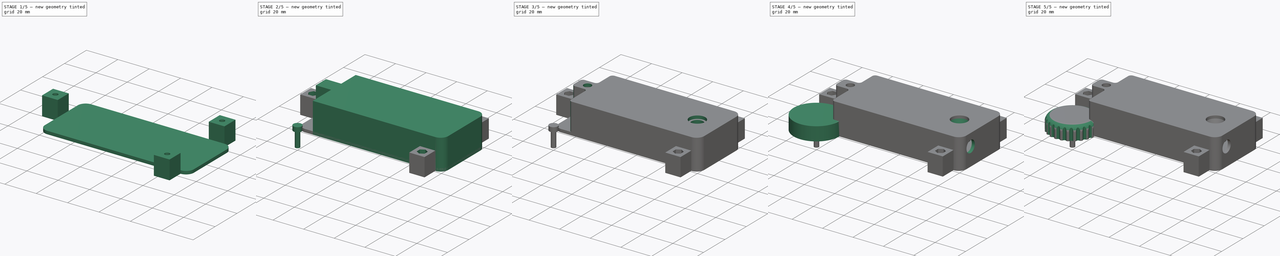
[diagram: build sequence overview — one tinted view per stage of 5, left to right]
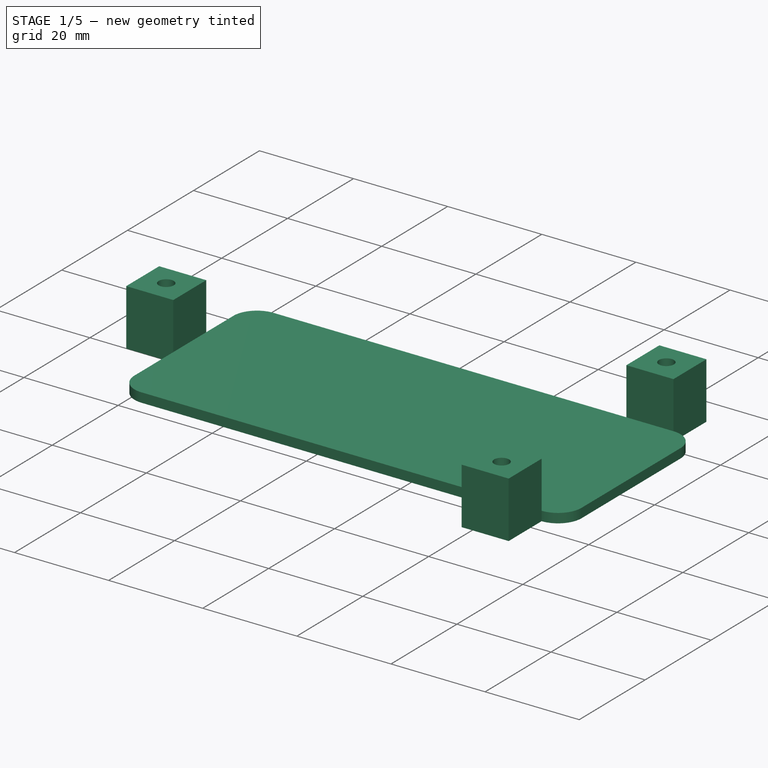
[diagram: stage 1 of 5 — iso view after this stage's code; geometry added in this stage tinted green]
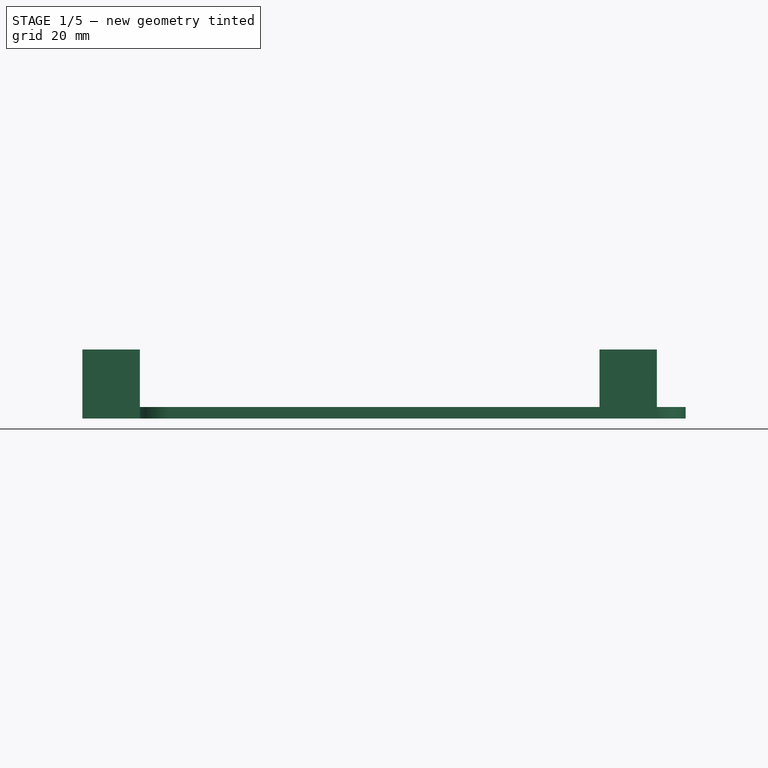
[diagram: stage 1 of 5 — front view after this stage's code; geometry added in this stage tinted green]
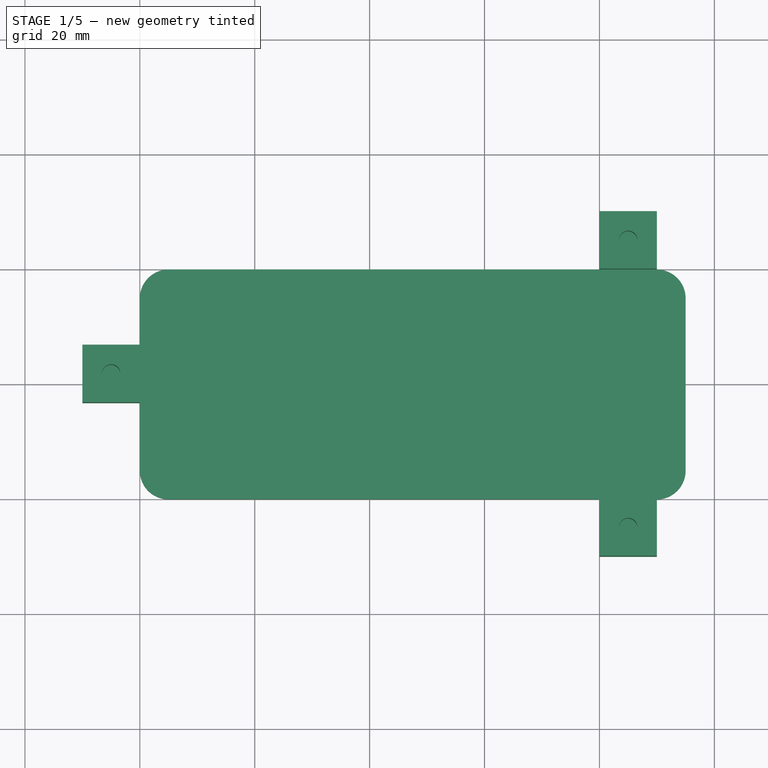
[diagram: stage 1 of 5 — top view after this stage's code; geometry added in this stage tinted green]
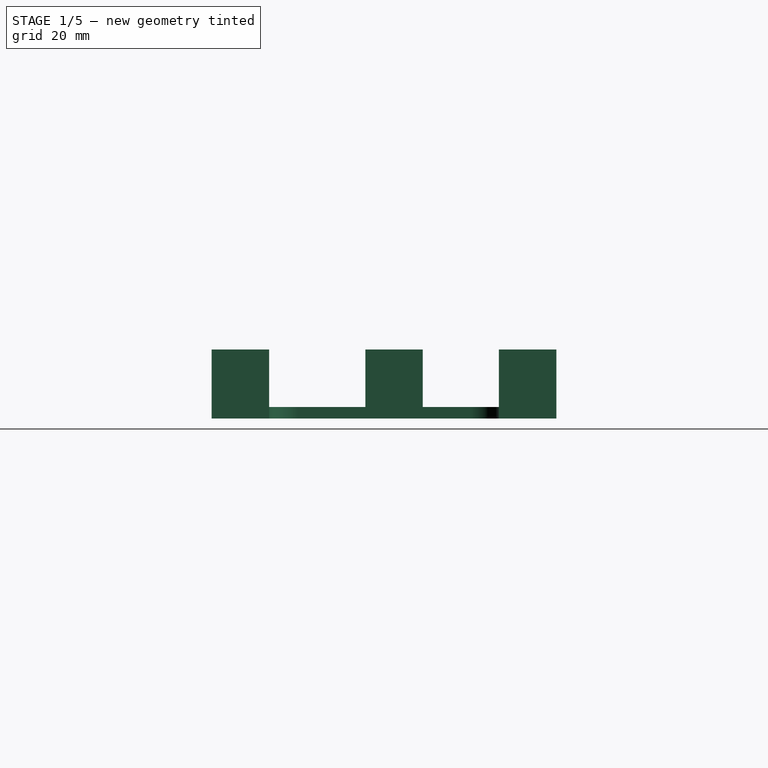
[diagram: stage 1 of 5 — right view after this stage's code; geometry added in this stage tinted green]
FCSTD DOCUMENT  (FreeCAD 0.17R12372 (Git))
Label: housing
License: All rights reserved
LicenseURL: http://en.wikipedia.org/wiki/All_rights_reserved
objects: Sketcher::SketchObject×17, PartDesign::Pocket×8, PartDesign::Pad×6, PartDesign::Fillet×4, PartDesign::Body×4, PartDesign::Plane×2, Part::Feature×2, App::VRMLObject×1, PartDesign::PolarPattern×1, PartDesign::Thickness×1, PartDesign::Line×1, PartDesign::Groove×1, PartDesign::Revolution×1
note: 64 computed .brp shape members not serialized (recipe doc carries the construction recipe); baked Part::Feature solids carry a one-line shape summary decoded from their .brp

FEATURE [Sketcher::SketchObject] Sketch
  MapMode = 5
  Support = -> [XY_Plane]
  sketch-geometry (8):
    g0: LineSegment StartX=5 StartY=0 StartZ=0 EndX=90 EndY=0 EndZ=0
    g1: LineSegment StartX=95 StartY=5 StartZ=0 EndX=95 EndY=35 EndZ=0
    g2: LineSegment StartX=90 StartY=40 StartZ=0 EndX=5 EndY=40 EndZ=0
    g3: LineSegment StartX=0 StartY=35 StartZ=0 EndX=0 EndY=5 EndZ=0
    g4: ArcOfCircle CenterX=5 CenterY=35 CenterZ=0 NormalX=0 NormalY=0 NormalZ=1 AngleXU=0 Radius=5 StartAngle=1.5708 EndAngle=3.14159
    g5: ArcOfCircle CenterX=90 CenterY=35 CenterZ=0 NormalX=0 NormalY=0 NormalZ=1 AngleXU=0 Radius=5 StartAngle=0 EndAngle=1.5708
    g6: ArcOfCircle CenterX=90 CenterY=5 CenterZ=0 NormalX=0 NormalY=0 NormalZ=1 AngleXU=0 Radius=5 StartAngle=4.71239 EndAngle=6.28319
    g7: ArcOfCircle CenterX=5 CenterY=5 CenterZ=0 NormalX=0 NormalY=0 NormalZ=1 AngleXU=0 Radius=5 StartAngle=3.14159 EndAngle=4.71239
  constraints (20):
    c: Horizontal(g0)
    c: Horizontal(g2)
    c: Vertical(g1)
    c: Vertical(g3)
    c: Tangent(g3,g4) = -1.5708
    c: Tangent(g2,g4) = -1.5708
    c: Tangent(g2,g5) = -1.5708
    c: Tangent(g1,g5) = -1.5708
    c: Tangent(g0,g6) = -1.5708
    c: Tangent(g1,g6) = -1.5708
    c: Tangent(g0,g7) = -1.5708
    c: Tangent(g3,g7) = -1.5708
    c: Equal(g4,g7)
    c: Equal(g7,g6)
    c: Equal(g6,g5)
    c: Radius(g4) = 5
    c: PointOnObject(g0,g-1)
    c: DistanceY(g0,g2) = 40
    c: DistanceX(g3,g1) = 95
    c: PointOnObject(g3,g-2)
FEATURE [PartDesign::Pad] Pad
  Length = 2
  Length2 = 100
  Profile = -> Sketch
  Type = 0
FEATURE [PartDesign::Body] Body001  label="cover"
  Group = -> [Sketch002,Pad001,Sketch003,Pocket,Thickness,Sketch010,Pocket004,Fillet001,Sketch011,Pocket005,Sketch013,Pad005,Sketch015,Pocket007,DatumLine,DatumPlane001,Sketch016,Groove,Fillet003,Fillet004]
  Origin = -> Body001Origin
  Placement = pos=(0,0,2) rot=(0,0,1;0rad)
  Tip = -> Fillet004
FEATURE [Sketcher::SketchObject] Sketch017
  ExternalGeometry = -> [Pad]
  MapMode = 5
  Placement = pos=(0,0,2) rot=(0,0,1;0rad)
  Support = -> [Pad]
  sketch-geometry (12):
    g0: LineSegment StartX=0 StartY=26.75 StartZ=0 EndX=-10 EndY=26.75 EndZ=0
    g1: LineSegment StartX=-10 StartY=26.75 StartZ=0 EndX=-10 EndY=16.75 EndZ=0
    g2: LineSegment StartX=-10 StartY=16.75 StartZ=0 EndX=0 EndY=16.75 EndZ=0
    g3: LineSegment StartX=0 StartY=16.75 StartZ=0 EndX=0 EndY=26.75 EndZ=0
    g4: LineSegment StartX=90 StartY=0 StartZ=0 EndX=80 EndY=0 EndZ=0
    g5: LineSegment StartX=80 StartY=0 StartZ=0 EndX=80 EndY=-10 EndZ=0
    g6: LineSegment StartX=80 StartY=-10 StartZ=0 EndX=90 EndY=-10 EndZ=0
    g7: LineSegment StartX=90 StartY=-10 StartZ=0 EndX=90 EndY=0 EndZ=0
    g8: LineSegment StartX=90 StartY=40 StartZ=0 EndX=80 EndY=40 EndZ=0
    g9: LineSegment StartX=80 StartY=40 StartZ=0 EndX=80 EndY=50 EndZ=0
    g10: LineSegment StartX=80 StartY=50 StartZ=0 EndX=90 EndY=50 EndZ=0
    g11: LineSegment StartX=90 StartY=50 StartZ=0 EndX=90 EndY=40 EndZ=0
  constraints (34):
    c: Coincident(g0,g1)
    c: Coincident(g1,g2)
    c: Coincident(g2,g3)
    c: Coincident(g3,g0)
    c: Horizontal(g0)
    c: Horizontal(g2)
    c: Vertical(g1)
    c: Vertical(g3)
    c: PointOnObject(g0,g-2)
    c: DistanceY(g0,g-3) = 13.25
    c: DistanceX(g0,g0) = 10
    c: DistanceY(g1,g1) = 10
    c: Coincident(g4,g5)
    c: Coincident(g5,g6)
    c: Coincident(g6,g7)
    c: Coincident(g7,g4)
    c: Horizontal(g4)
    c: Horizontal(g6)
    c: Vertical(g5)
    c: Vertical(g7)
    c: Coincident(g4,g-4)
    c: Coincident(g8,g9)
    c: Coincident(g9,g10)
    c: Coincident(g10,g11)
    c: Coincident(g11,g8)
    c: Horizontal(g8)
    c: Horizontal(g10)
    c: Vertical(g9)
    c: Vertical(g11)
    c: Coincident(g8,g-3)
    c: Equal(g11,g0)
    c: Equal(g0,g7)
    c: Equal(g7,g6)
    c: Equal(g10,g11)
FEATURE [PartDesign::Pad] Pad006
  BaseFeature = -> Pad
  Length = 2
  Length2 = 100
  Profile = -> Sketch017
  Reversed = true
  Type = 0
FEATURE [Sketcher::SketchObject] Sketch018
  ExternalGeometry = -> [Pad006]
  MapMode = 5
  Placement = pos=(0,0,2) rot=(0,0,1;0rad)
  Support = -> [Pad006]
  sketch-geometry (12):
    g0: LineSegment StartX=-10 StartY=26.75 StartZ=0 EndX=0 EndY=26.75 EndZ=0
    g1: LineSegment StartX=0 StartY=26.75 StartZ=0 EndX=0 EndY=16.75 EndZ=0
    g2: LineSegment StartX=0 StartY=16.75 StartZ=0 EndX=-10 EndY=16.75 EndZ=0
    g3: LineSegment StartX=-10 StartY=16.75 StartZ=0 EndX=-10 EndY=26.75 EndZ=0
    g4: LineSegment StartX=80 StartY=0 StartZ=0 EndX=90 EndY=0 EndZ=0
    g5: LineSegment StartX=90 StartY=0 StartZ=0 EndX=90 EndY=-10 EndZ=0
    g6: LineSegment StartX=90 StartY=-10 StartZ=0 EndX=80 EndY=-10 EndZ=0
    g7: LineSegment StartX=80 StartY=-10 StartZ=0 EndX=80 EndY=0 EndZ=0
    g8: LineSegment StartX=90 StartY=50 StartZ=0 EndX=80 EndY=50 EndZ=0
    g9: LineSegment StartX=80 StartY=50 StartZ=0 EndX=80 EndY=40 EndZ=0
    g10: LineSegment StartX=80 StartY=40 StartZ=0 EndX=90 EndY=40 EndZ=0
    g11: LineSegment StartX=90 StartY=40 StartZ=0 EndX=90 EndY=50 EndZ=0
  constraints (30):
    c: Coincident(g0,g1)
    c: Coincident(g1,g2)
    c: Coincident(g2,g3)
    c: Coincident(g3,g0)
    c: Horizontal(g0)
    c: Horizontal(g2)
    c: Vertical(g1)
    c: Vertical(g3)
    c: Coincident(g0,g-4)
    c: Coincident(g1,g-5)
    c: Coincident(g4,g5)
    c: Coincident(g5,g6)
    c: Coincident(g6,g7)
    c: Coincident(g7,g4)
    c: Horizontal(g4)
    c: Horizontal(g6)
    c: Vertical(g5)
    c: Vertical(g7)
    c: Coincident(g4,g-6)
    c: Coincident(g5,g-8)
    c: Coincident(g8,g9)
    c: Coincident(g9,g10)
    c: Coincident(g10,g11)
    c: Coincident(g11,g8)
    c: Horizontal(g8)
    c: Horizontal(g10)
    c: Vertical(g9)
    c: Vertical(g11)
    c: Coincident(g8,g-11)
    c: Coincident(g9,g-9)
FEATURE [PartDesign::Pad] Pad007
  BaseFeature = -> Pad006
  Length = 10
  Length2 = 100
  Profile = -> Sketch018
  Type = 0
FEATURE [PartDesign::Body] Body003  label="M3x10"
  Group = -> [Sketch019,Revolution]
  Origin = -> Origin
  Placement = pos=(85,-5,15) rot=(0,0,1;0rad)
  Tip = -> Revolution
FEATURE [Sketcher::SketchObject] Sketch020
  ExternalGeometry = -> [Pad007]
  MapMode = 5
  Placement = pos=(0,0,12) rot=(0,0,1;0rad)
  Support = -> [Pad007]
  sketch-geometry (3):
    g0: Circle CenterX=85 CenterY=-5 CenterZ=0 NormalX=0 NormalY=0 NormalZ=1 AngleXU=0 Radius=1.6
    g1: Circle CenterX=85 CenterY=45 CenterZ=0 NormalX=0 NormalY=0 NormalZ=1 AngleXU=0 Radius=1.6
    g2: Circle CenterX=-5 CenterY=21.75 CenterZ=0 NormalX=0 NormalY=0 NormalZ=1 AngleXU=0 Radius=1.6
  constraints (9):
    c: Equal(g2,g1)
    c: Equal(g1,g0)
    c: Radius(g2) = 1.6
    c: DistanceY(g2,g-4) = 5
    c: DistanceX(g-4,g2) = 5
    c: DistanceY(g1,g-6) = 5
    c: DistanceX(g1,g-6) = 5
    c: DistanceX(g0,g-8) = 5
    c: DistanceY(g-8,g0) = 5
FEATURE [PartDesign::Pocket] Pocket008
  BaseFeature = -> Pad007
  Length = 9
  Profile = -> Sketch020
  Type = 0
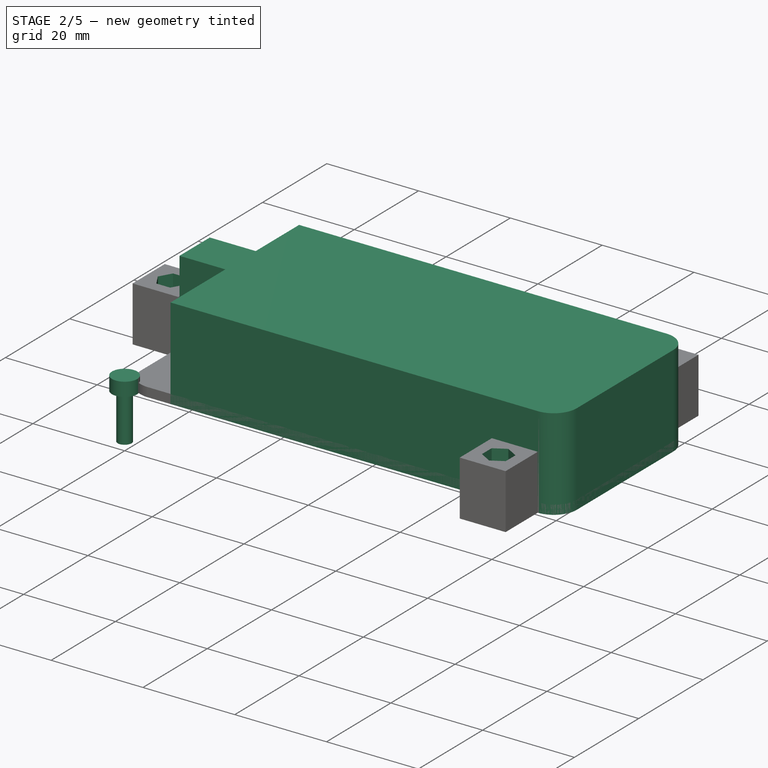
[diagram: stage 2 of 5 — iso view after this stage's code; geometry added in this stage tinted green]
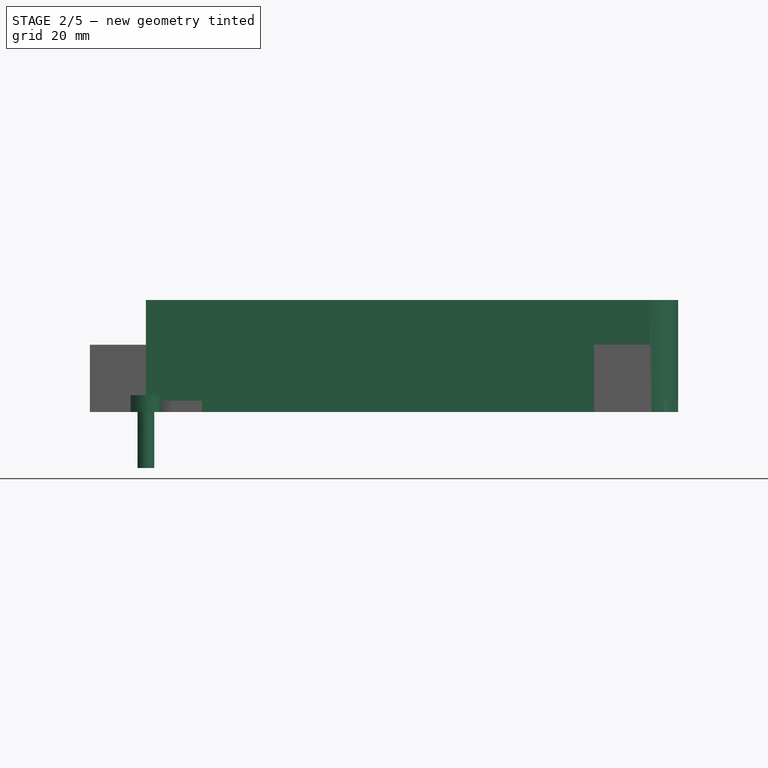
[diagram: stage 2 of 5 — front view after this stage's code; geometry added in this stage tinted green]
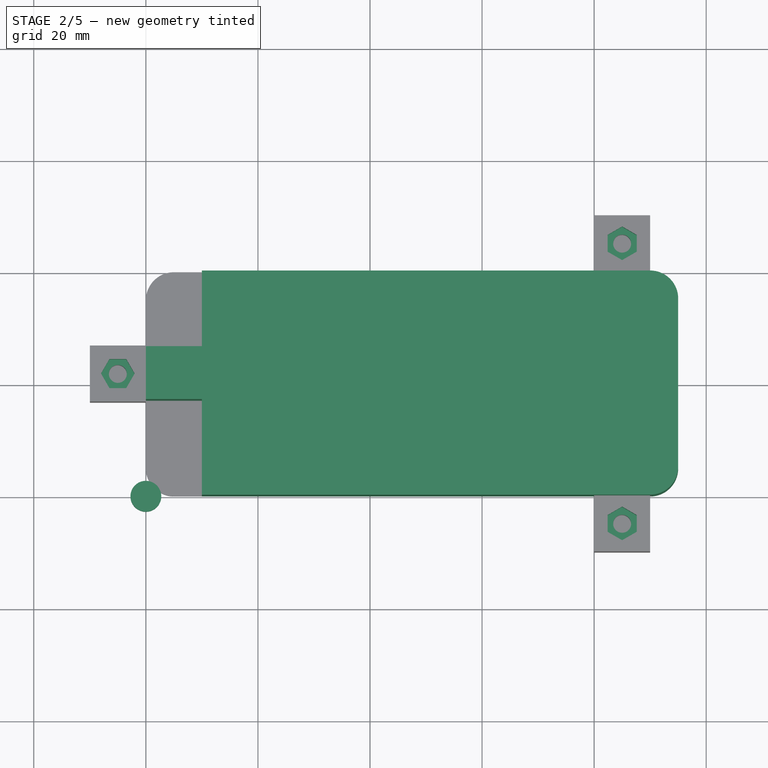
[diagram: stage 2 of 5 — top view after this stage's code; geometry added in this stage tinted green]
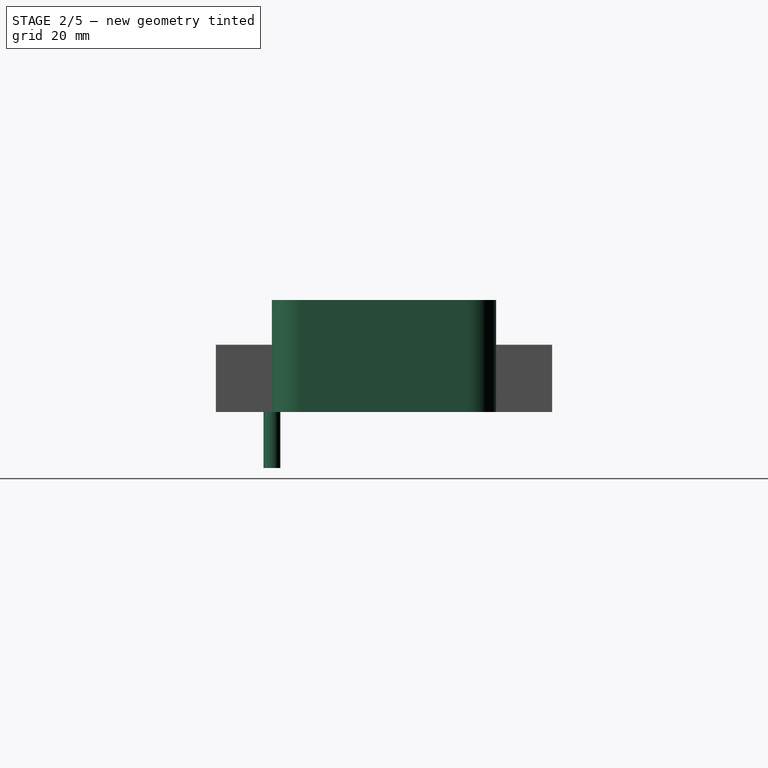
[diagram: stage 2 of 5 — right view after this stage's code; geometry added in this stage tinted green]
FEATURE [PartDesign::Plane] DatumPlane
  MapMode = 5
  Placement = pos=(5,0,2) rot=(0.57735,-0.57735,-0.57735;2.0944rad)
  Support = -> [Pad]
  superPlacement = pos=(0,2,-2) rot=(0,0,1;0rad)
FEATURE [Sketcher::SketchObject] Sketch001
  ExternalGeometry = -> [Pad]
  MapMode = 5
  Placement = pos=(5,0,2) rot=(0.57735,-0.57735,-0.57735;2.0944rad)
  Support = -> [DatumPlane]
  sketch-geometry (7):
    g0: LineSegment StartX=-39 StartY=0 StartZ=0 EndX=-24.6087 EndY=0 EndZ=0
    g1: LineSegment StartX=-37 StartY=3 StartZ=0 EndX=-37 EndY=4 EndZ=0
    g2: LineSegment StartX=-37 StartY=4 StartZ=0 EndX=-39 EndY=4 EndZ=0
    g3: LineSegment StartX=-39 StartY=4 StartZ=0 EndX=-39 EndY=0 EndZ=0
    g4: LineSegment StartX=-37 StartY=3 StartZ=0 EndX=-38 EndY=3 EndZ=0
    g5: LineSegment StartX=-38 StartY=3 StartZ=0 EndX=-38 EndY=0 EndZ=0
    g6: LineSegment StartX=-39 StartY=0 StartZ=0 EndX=-38 EndY=0 EndZ=0
  constraints (17):
    c: Coincident(g1,g2)
    c: Coincident(g2,g3)
    c: Coincident(g3,g0)
    c: Horizontal(g0)
    c: Horizontal(g2)
    c: Vertical(g1)
    c: Vertical(g3)
    c: Horizontal(g4)
    c: Coincident(g5,g4)
    c: Vertical(g5)
    c: Coincident(g1,g4)
    c: Distance(g5,g0) = 1
    c: DistanceY(g5,g5) = 3
    c: DistanceY(g1,g1) = 1
    c: DistanceX(g4,g4) = 1
    c: Coincident(g6,g0)
    c: Coincident(g6,g5)
FEATURE [App::VRMLObject] motion_led_pcb
  Placement = pos=(-120,90,4) rot=(0,0,1;0rad)
FEATURE [Part::Feature] Compound001  label="encoder"
  Placement = pos=(97,20.5,13.2) rot=(0,0,1;0rad)
  shape: bbox 15.85 x 11.79 x 29.72 mm, 174 faces, 12 solids (baked)
FEATURE [Sketcher::SketchObject] Sketch002
  MapMode = 5
  Support = -> [XY_Plane001]
  sketch-geometry (8):
    g0: LineSegment StartX=5 StartY=0 StartZ=0 EndX=90 EndY=0 EndZ=0
    g1: LineSegment StartX=95 StartY=5 StartZ=0 EndX=95 EndY=35 EndZ=0
    g2: LineSegment StartX=90 StartY=40 StartZ=0 EndX=5 EndY=40 EndZ=0
    g3: LineSegment StartX=0 StartY=35 StartZ=0 EndX=0 EndY=5 EndZ=0
    g4: ArcOfCircle CenterX=5 CenterY=35 CenterZ=0 NormalX=0 NormalY=0 NormalZ=1 AngleXU=0 Radius=5 StartAngle=1.5708 EndAngle=3.14159
    g5: ArcOfCircle CenterX=5 CenterY=5 CenterZ=0 NormalX=0 NormalY=0 NormalZ=1 AngleXU=0 Radius=5 StartAngle=3.14159 EndAngle=4.71239
    g6: ArcOfCircle CenterX=90 CenterY=5 CenterZ=0 NormalX=0 NormalY=0 NormalZ=1 AngleXU=0 Radius=5 StartAngle=4.71239 EndAngle=6.28319
    g7: ArcOfCircle CenterX=90 CenterY=35 CenterZ=0 NormalX=0 NormalY=0 NormalZ=1 AngleXU=0 Radius=5 StartAngle=0 EndAngle=1.5708
  constraints (20):
    c: Horizontal(g0)
    c: Horizontal(g2)
    c: Vertical(g1)
    c: Vertical(g3)
    c: Tangent(g2,g4) = -1.5708
    c: Tangent(g3,g4) = -1.5708
    c: Tangent(g3,g5) = -1.5708
    c: Tangent(g0,g5) = -1.5708
    c: Tangent(g1,g6) = -1.5708
    c: Tangent(g0,g6) = -1.5708
    c: Tangent(g2,g7) = -1.5708
    c: Tangent(g1,g7) = -1.5708
    c: Equal(g7,g4)
    c: Equal(g4,g5)
    c: Equal(g5,g6)
    c: Radius(g7) = 5
    c: PointOnObject(g0,g-1)
    c: PointOnObject(g3,g-2)
    c: DistanceY(g0,g2) = 40
    c: DistanceX(g3,g1) = 95
FEATURE [PartDesign::Pad] Pad001
  Length = 20
  Length2 = 100
  Profile = -> Sketch002
  Type = 0
FEATURE [PartDesign::Body] Body002  label="dial"
  Group = -> [Sketch006,Pad003,Sketch007,Pocket002,Fillet,Sketch009,Pocket003,PolarPattern]
  Origin = -> Body002Origin
  Placement = pos=(80,20,23) rot=(0,0,1;0rad)
FEATURE [PartDesign::Pocket] Pocket
  Length = 28
  Profile = -> Sketch003
  Type = 0
FEATURE [PartDesign::Thickness] Thickness
  Base = -> Pocket [Face2]
  BaseFeature = -> Pocket
  Join = 1
  Mode = 0
  Reversed = true
  Value = 2
FEATURE [Sketcher::SketchObject] Sketch019
  MapMode = 5
  Placement = pos=(0,0,0) rot=(1,0,0;1.5708rad)
  Support = -> [XZ_Plane003]
  sketch-geometry (6):
    g0: LineSegment StartX=0 StartY=3 StartZ=0 EndX=0 EndY=-10 EndZ=0
    g1: LineSegment StartX=0 StartY=-10 StartZ=0 EndX=1.5 EndY=-10 EndZ=0
    g2: LineSegment StartX=1.5 StartY=-10 StartZ=0 EndX=1.5 EndY=0 EndZ=0
    g3: LineSegment StartX=0 StartY=3 StartZ=0 EndX=2.75 EndY=3 EndZ=0
    g4: LineSegment StartX=2.75 StartY=3 StartZ=0 EndX=2.75 EndY=0 EndZ=0
    g5: LineSegment StartX=2.75 StartY=0 StartZ=0 EndX=1.5 EndY=0 EndZ=0
  constraints (18):
    c: PointOnObject(g0,g-2)
    c: PointOnObject(g0,g-2)
    c: Coincident(g1,g0)
    c: Horizontal(g1)
    c: Vertical(g2)
    c: Coincident(g2,g1)
    c: Coincident(g3,g0)
    c: Horizontal(g3)
    c: Coincident(g4,g3)
    c: Vertical(g4)
    c: Coincident(g5,g4)
    c: Coincident(g5,g2)
    c: Horizontal(g5)
    c: Distance(g3) = 2.75
    c: Distance(g1) = 1.5
    c: Distance(g4) = 3
    c: Distance(g2) = 10
    c: PointOnObject(g2,g-1)
FEATURE [PartDesign::Revolution] Revolution
  Angle = 360
  Axis = (0,0,1)
  Base = (0,0,0)
  Placement = pos=(0,0,0) rot=(1,0,0;1.5708rad)
  Profile = -> Sketch019
  ReferenceAxis = -> Sketch019 [V_Axis]
  Reversed = true
FEATURE [Sketcher::SketchObject] Sketch021
  ExternalGeometry = -> [Pocket008]
  MapMode = 5
  Placement = pos=(0,0,12) rot=(0,0,1;0rad)
  Support = -> [Pocket008]
  sketch-geometry (21):
    g0: LineSegment StartX=-3.5 StartY=19.1519 StartZ=0 EndX=-2 EndY=21.75 EndZ=0
    g1: LineSegment StartX=-2 StartY=21.75 StartZ=0 EndX=-3.5 EndY=24.3481 EndZ=0
    g2: LineSegment StartX=-3.5 StartY=24.3481 StartZ=0 EndX=-6.5 EndY=24.3481 EndZ=0
    g3: LineSegment StartX=-6.5 StartY=24.3481 StartZ=0 EndX=-8 EndY=21.75 EndZ=0
    g4: LineSegment StartX=-8 StartY=21.75 StartZ=0 EndX=-6.5 EndY=19.1519 EndZ=0
    g5: LineSegment StartX=-6.5 StartY=19.1519 StartZ=0 EndX=-3.5 EndY=19.1519 EndZ=0
    g6: Circle [constr] CenterX=-5 CenterY=21.75 CenterZ=0 NormalX=0 NormalY=0 NormalZ=1 AngleXU=0 Radius=3
    g7: LineSegment StartX=87.5981 StartY=43.5 StartZ=0 EndX=87.5981 EndY=46.5 EndZ=0
    g8: LineSegment StartX=87.5981 StartY=46.5 StartZ=0 EndX=85 EndY=48 EndZ=0
    g9: LineSegment StartX=85 StartY=48 StartZ=0 EndX=82.4019 EndY=46.5 EndZ=0
    g10: LineSegment StartX=82.4019 StartY=46.5 StartZ=0 EndX=82.4019 EndY=43.5 EndZ=0
    g11: LineSegment StartX=82.4019 StartY=43.5 StartZ=0 EndX=85 EndY=42 EndZ=0
    g12: LineSegment StartX=85 StartY=42 StartZ=0 EndX=87.5981 EndY=43.5 EndZ=0
    g13: Circle [constr] CenterX=85 CenterY=45 CenterZ=0 NormalX=0 NormalY=0 NormalZ=1 AngleXU=0 Radius=3
    g14: LineSegment StartX=87.5981 StartY=-6.5 StartZ=0 EndX=87.5981 EndY=-3.5 EndZ=0
    g15: LineSegment StartX=87.5981 StartY=-3.5 StartZ=0 EndX=85 EndY=-2 EndZ=0
    g16: LineSegment StartX=85 StartY=-2 StartZ=0 EndX=82.4019 EndY=-3.5 EndZ=0
    g17: LineSegment StartX=82.4019 StartY=-3.5 StartZ=0 EndX=82.4019 EndY=-6.5 EndZ=0
    g18: LineSegment StartX=82.4019 StartY=-6.5 StartZ=0 EndX=85 EndY=-8 EndZ=0
    g19: LineSegment StartX=85 StartY=-8 StartZ=0 EndX=87.5981 EndY=-6.5 EndZ=0
    g20: Circle [constr] CenterX=85 CenterY=-5 CenterZ=0 NormalX=0 NormalY=0 NormalZ=1 AngleXU=0 Radius=3
  constraints (48):
    c: Coincident(g0,g1)
    c: Coincident(g1,g2)
    c: Coincident(g2,g3)
    c: Coincident(g3,g4)
    c: Coincident(g4,g5)
    c: Coincident(g5,g0)
    c: Equal(g0, g1-g5) x5
    c: PointOnObject(g0,g6)
    c: PointOnObject(g1,g6)
    c: PointOnObject(g2,g6)
    c: PointOnObject(g3,g6)
    c: PointOnObject(g4,g6)
    c: PointOnObject(g5,g6)
    c: Coincident(g6,g-3)
    c: Coincident(g7,g8)
    c: Coincident(g8,g9)
    c: Coincident(g9,g10)
    c: Coincident(g10,g11)
    c: Coincident(g11,g12)
    c: Coincident(g12,g7)
    c: Equal(g7, g8-g12) x5
    c: PointOnObject(g7,g13)
    c: PointOnObject(g8,g13)
    c: PointOnObject(g9,g13)
    c: PointOnObject(g10,g13)
    c: PointOnObject(g11,g13)
    c: PointOnObject(g12,g13)
    c: Coincident(g13,g-4)
    c: Coincident(g14,g15)
    c: Coincident(g15,g16)
    c: Coincident(g16,g17)
    c: Coincident(g17,g18)
    c: Coincident(g18,g19)
    c: Coincident(g19,g14)
    c: Equal(g14, g15-g19) x5
    c: PointOnObject(g14,g20)
    c: PointOnObject(g15,g20)
    c: PointOnObject(g16,g20)
    c: PointOnObject(g17,g20)
    c: PointOnObject(g18,g20)
    c: PointOnObject(g19,g20)
    c: Coincident(g20,g-5)
    c: Equal(g6,g13)
    c: Equal(g13,g20)
    c: Radius(g6) = 3
    c: Horizontal(g2)
    c: Vertical(g7)
    c: Vertical(g17)
FEATURE [PartDesign::Pocket] Pocket009
  BaseFeature = -> Pocket008
  Length = 4
  Profile = -> Sketch021
  Type = 0
FEATURE [PartDesign::Body] Body  label="base"
  Group = -> [Sketch,Pad,DatumPlane,Sketch001,Sketch017,Pad006,Sketch018,Pad007,Sketch020,Pocket008,Sketch021,Pocket009]
  Origin = -> BodyOrigin
  Tip = -> Pocket009
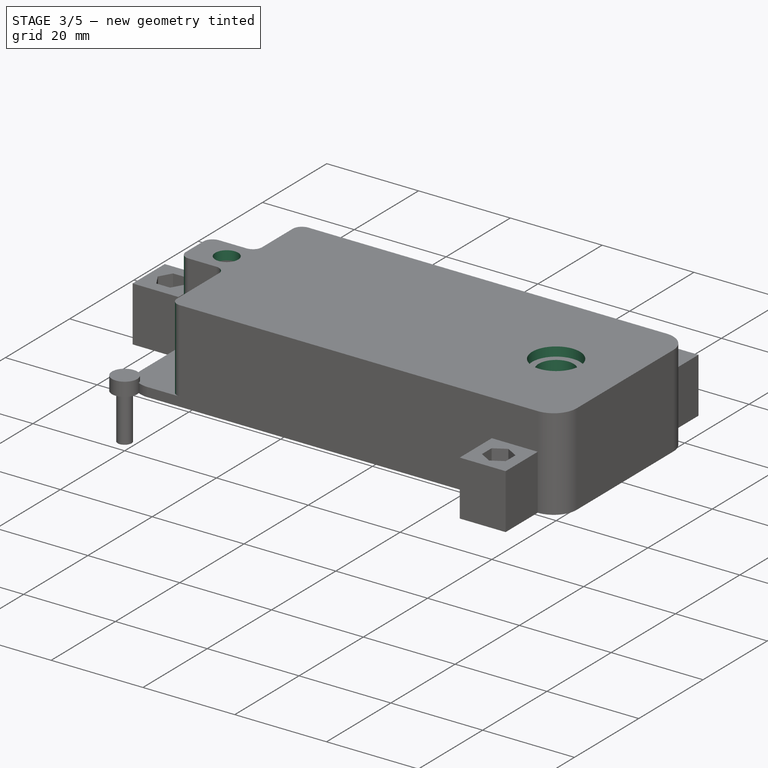
[diagram: stage 3 of 5 — iso view after this stage's code; geometry added in this stage tinted green]
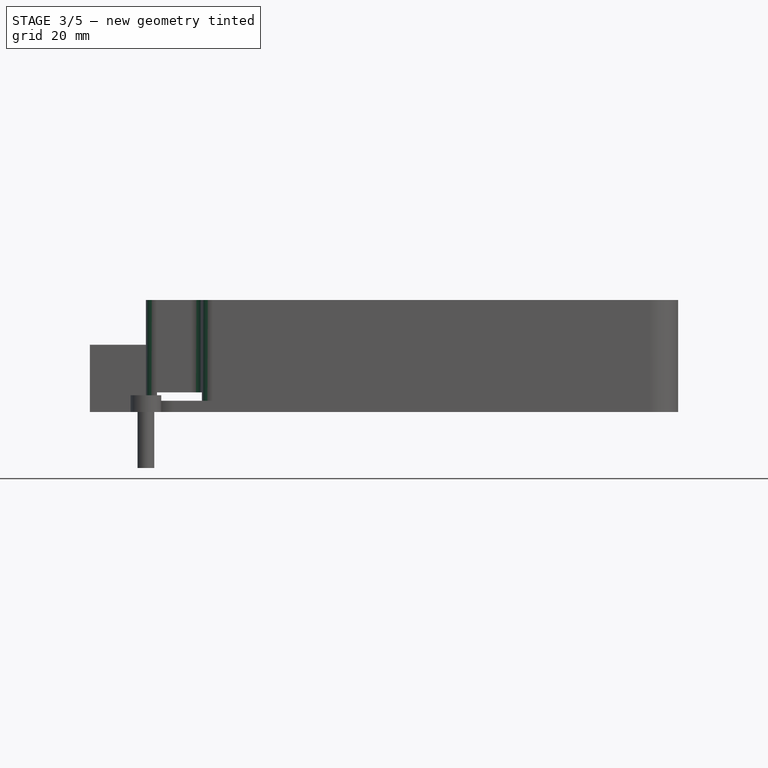
[diagram: stage 3 of 5 — front view after this stage's code; geometry added in this stage tinted green]
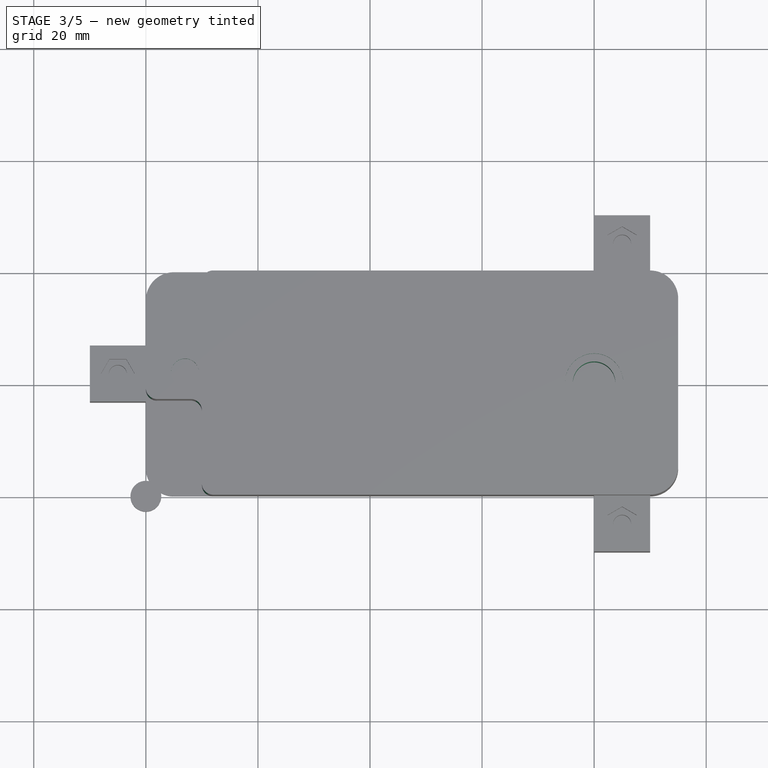
[diagram: stage 3 of 5 — top view after this stage's code; geometry added in this stage tinted green]
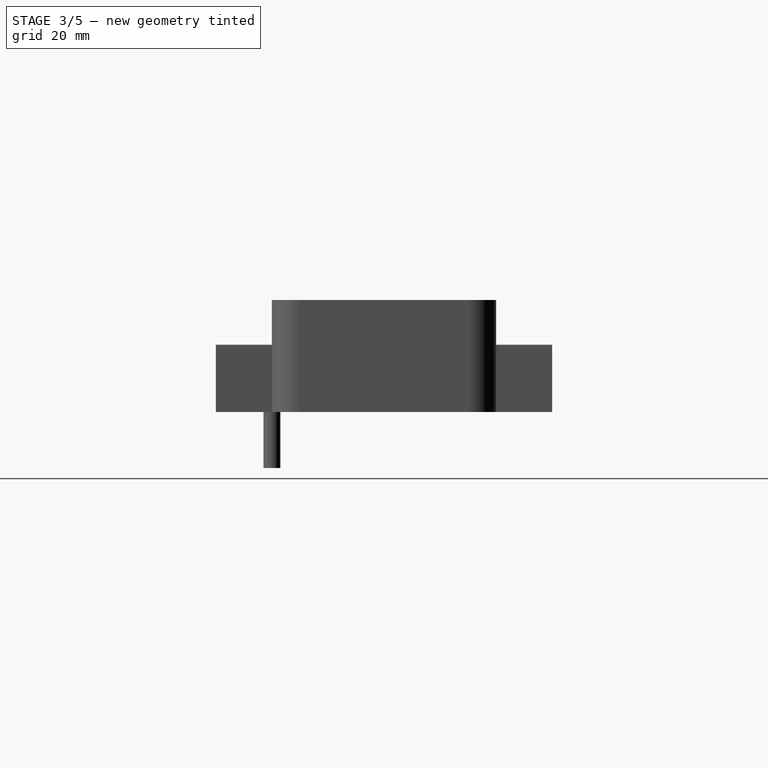
[diagram: stage 3 of 5 — right view after this stage's code; geometry added in this stage tinted green]
FEATURE [Sketcher::SketchObject] Sketch010
  ExternalGeometry = -> [Thickness]
  MapMode = 5
  Placement = pos=(0,2,0) rot=(0,0.707107,0.707107;3.14159rad)
  Support = -> [Thickness]
  sketch-geometry (4):
    g0: LineSegment StartX=-2 StartY=0 StartZ=0 EndX=-12 EndY=0 EndZ=0
    g1: LineSegment StartX=-12 StartY=0 StartZ=0 EndX=-12 EndY=3.5 EndZ=0
    g2: LineSegment StartX=-12 StartY=3.5 StartZ=0 EndX=-2 EndY=3.5 EndZ=0
    g3: LineSegment StartX=-2 StartY=3.5 StartZ=0 EndX=-2 EndY=0 EndZ=0
  constraints (11):
    c: Coincident(g0,g1)
    c: Coincident(g1,g2)
    c: Coincident(g2,g3)
    c: Coincident(g3,g0)
    c: Horizontal(g0)
    c: Horizontal(g2)
    c: Vertical(g1)
    c: Vertical(g3)
    c: Coincident(g0,g-4)
    c: Coincident(g0,g-5)
    c: DistanceY(g3,g3) = 3.5
FEATURE [PartDesign::Pocket] Pocket004
  BaseFeature = -> Thickness
  Length = 36
  Profile = -> Sketch010
  Reversed = true
  Type = 0
FEATURE [PartDesign::Fillet] Fillet001
  Base = -> Pocket004 [Edge4,Edge30,Edge55,Edge57,Edge49,Edge47]
  BaseFeature = -> Pocket004
  Radius = 2
FEATURE [Sketcher::SketchObject] Sketch011  label="hole_dial"
  ExternalGeometry = -> [Fillet001]
  MapMode = 5
  Placement = pos=(0,0,20) rot=(0,0,1;0rad)
  Support = -> [Fillet001]
  sketch-geometry (4):
    g0: Circle CenterX=7 CenterY=21.7781 CenterZ=0 NormalX=0 NormalY=0 NormalZ=1 AngleXU=0 Radius=2.5
    g1: LineSegment [constr] StartX=7 StartY=21.7781 StartZ=0 EndX=16.0028 EndY=21.7781 EndZ=0
    g2: Circle CenterX=80 CenterY=20 CenterZ=0 NormalX=0 NormalY=0 NormalZ=1 AngleXU=0 Radius=5.2
    g3: LineSegment [constr] StartX=80 StartY=20 StartZ=0 EndX=91.4136 EndY=20 EndZ=0
  constraints (10):
    c: Radius(g0) = 2.5
    c: Coincident(g1,g0)
    c: Horizontal(g1)
    c: Symmetric(g-3,g-4,g1)
    c: DistanceX(g-5,g0) = 7
    c: Coincident(g3,g2)
    c: Horizontal(g3)
    c: Symmetric(g-6,g-7,g3)
    c: DistanceX(g2,g-8) = 15
    c: Radius(g2) = 5.2
FEATURE [PartDesign::Pocket] Pocket005  label="hole_dial001"
  BaseFeature = -> Fillet001
  Length = 5
  Profile = -> Sketch011
  Type = 2
FEATURE [Sketcher::SketchObject] Sketch013
  ExternalGeometry = -> [Pocket005]
  MapMode = 5
  Placement = pos=(0,0,18) rot=(1,0,0;3.14159rad)
  Support = -> [Pocket005]
  sketch-geometry (2):
    g0: Circle CenterX=80 CenterY=-20 CenterZ=0 NormalX=0 NormalY=0 NormalZ=1 AngleXU=0 Radius=6
    g1: Circle CenterX=80 CenterY=-20 CenterZ=0 NormalX=0 NormalY=0 NormalZ=1 AngleXU=0 Radius=3.8
  constraints (4):
    c: Coincident(g0,g-3)
    c: Coincident(g1,g0)
    c: Radius(g0) = 6
    c: Radius(g1) = 3.8
FEATURE [PartDesign::Pad] Pad005
  BaseFeature = -> Pocket005
  Length = 10
  Length2 = 100
  Profile = -> Sketch013
  Type = 0
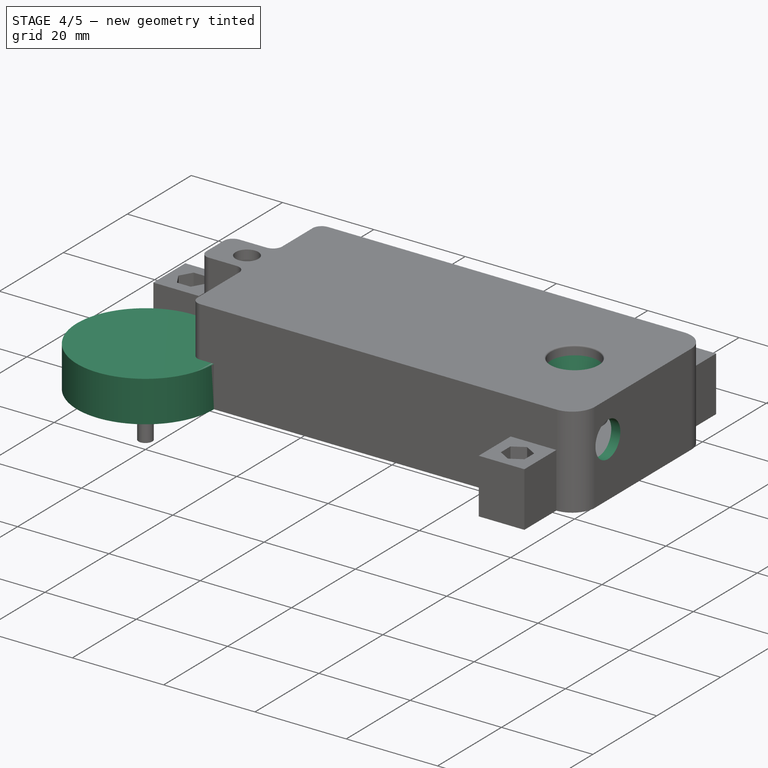
[diagram: stage 4 of 5 — iso view after this stage's code; geometry added in this stage tinted green]
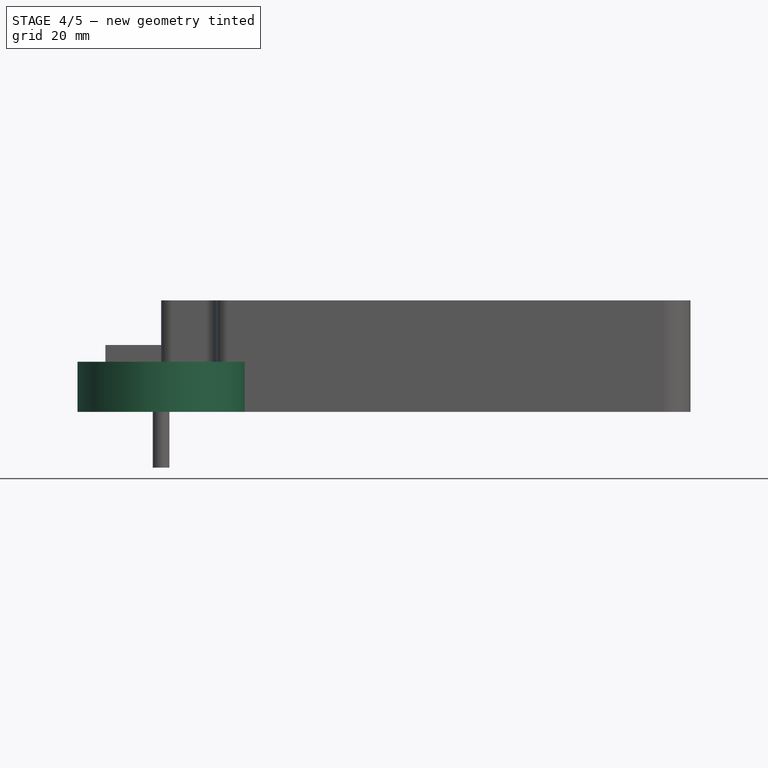
[diagram: stage 4 of 5 — front view after this stage's code; geometry added in this stage tinted green]
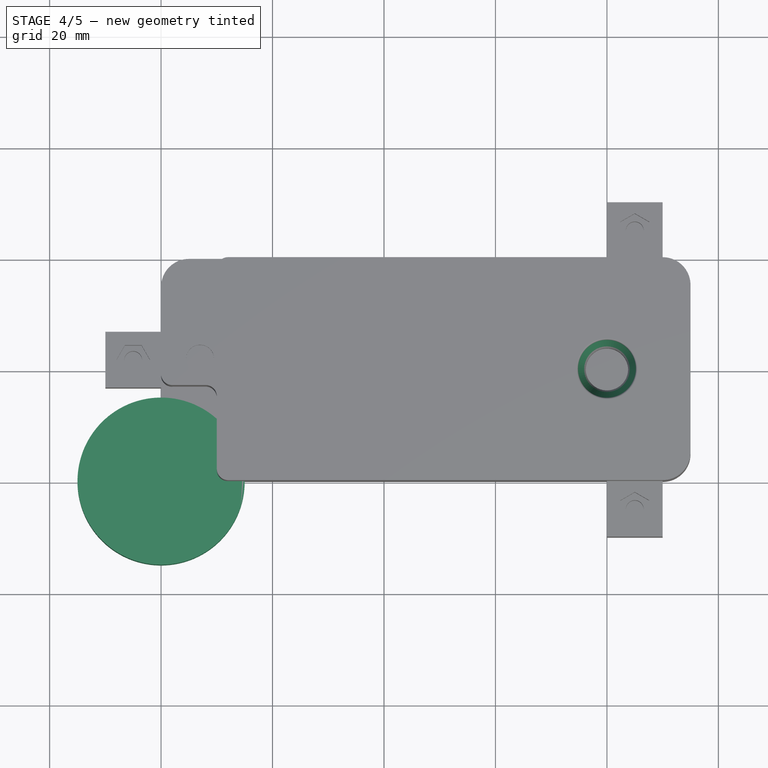
[diagram: stage 4 of 5 — top view after this stage's code; geometry added in this stage tinted green]
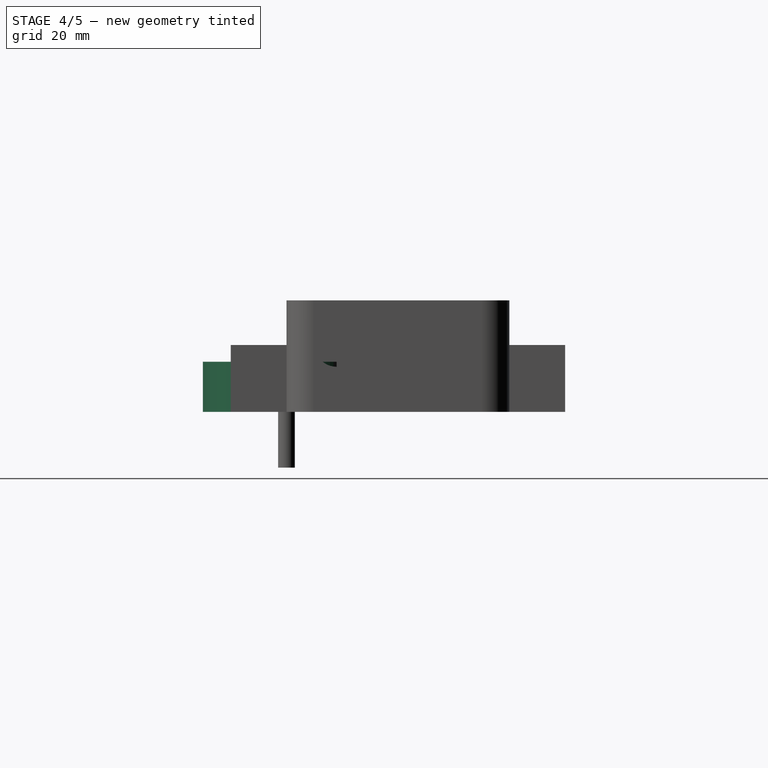
[diagram: stage 4 of 5 — right view after this stage's code; geometry added in this stage tinted green]
FEATURE [Sketcher::SketchObject] Sketch003
  ExternalGeometry = -> [Pad001]
  MapMode = 5
  Placement = pos=(0,0,20) rot=(0,0,1;0rad)
  Support = -> [Pad001]
  sketch-geometry (8):
    g0: LineSegment StartX=10 StartY=40 StartZ=0 EndX=0 EndY=40 EndZ=0
    g1: LineSegment StartX=0 StartY=40 StartZ=0 EndX=0 EndY=26.4982 EndZ=0
    g2: LineSegment StartX=0 StartY=26.4982 StartZ=0 EndX=10 EndY=26.4982 EndZ=0
    g3: LineSegment StartX=10 StartY=26.4982 StartZ=0 EndX=10 EndY=40 EndZ=0
    g4: LineSegment StartX=0 StartY=17.058 StartZ=0 EndX=10 EndY=17.058 EndZ=0
    g5: LineSegment StartX=10 StartY=17.058 StartZ=0 EndX=10 EndY=0 EndZ=0
    g6: LineSegment StartX=10 StartY=0 StartZ=0 EndX=0 EndY=0 EndZ=0
    g7: LineSegment StartX=0 StartY=0 StartZ=0 EndX=0 EndY=17.058 EndZ=0
  constraints (22):
    c: Coincident(g0,g1)
    c: Coincident(g1,g2)
    c: Coincident(g2,g3)
    c: Coincident(g3,g0)
    c: Horizontal(g0)
    c: Horizontal(g2)
    c: Vertical(g1)
    c: Vertical(g3)
    c: Coincident(g4,g5)
    c: Coincident(g5,g6)
    c: Coincident(g6,g7)
    c: Coincident(g7,g4)
    c: Horizontal(g4)
    c: Horizontal(g6)
    c: Vertical(g5)
    c: Vertical(g7)
    c: PointOnObject(g0,g-2)
    c: PointOnObject(g6,g-2)
    c: Equal(g2,g4)
    c: PointOnObject(g0,g-3)
    c: PointOnObject(g5,g-4)
    c: DistanceX(g6,g6) = 10
FEATURE [Sketcher::SketchObject] Sketch006
  MapMode = 5
  Support = -> [XY_Plane002]
  sketch-geometry (1):
    g0: Circle CenterX=0 CenterY=0 CenterZ=0 NormalX=0 NormalY=0 NormalZ=1 AngleXU=0 Radius=15
  constraints (2):
    c: Coincident(g0,g-1)
    c: Radius(g0) = 15
FEATURE [PartDesign::Pad] Pad003
  Length = 9
  Length2 = 100
  Profile = -> Sketch006
  Type = 0
FEATURE [Part::Feature] Part__Feature  label="DC_Jack"
  Placement = pos=(97,9,14) rot=(0,0,1;0rad)
  shape: bbox 20.9 x 11.55 x 10.55 mm, 111 faces (baked)
FEATURE [Sketcher::SketchObject] Sketch015
  ExternalGeometry = -> [Pad005]
  MapMode = 5
  Placement = pos=(95,0,0) rot=(0.57735,0.57735,0.57735;2.0944rad)
  Support = -> [Pad005]
  sketch-geometry (1):
    g0: Circle CenterX=9 CenterY=12 CenterZ=0 NormalX=0 NormalY=0 NormalZ=1 AngleXU=0 Radius=3.9
  constraints (3):
    c: DistanceY(g0,g-3) = 8
    c: DistanceX(g-1,g0) = 9
    c: Radius(g0) = 3.9
FEATURE [PartDesign::Pocket] Pocket007  label="hole_dc_jack"
  BaseFeature = -> Pad005
  Length = 5
  Profile = -> Sketch015
  Type = 2
FEATURE [PartDesign::Line] DatumLine
  AttacherType = Attacher::AttachEngineLine
  MapMode = 19
  Placement = pos=(80,20,18) rot=(-1,0,0;3.14159rad)
  Support = -> [Pocket007]
FEATURE [PartDesign::Plane] DatumPlane001
  MapMode = 13
  Placement = pos=(84.2667,20,15.3333) rot=(1,0,0;1.5708rad)
  Support = -> [Pocket007]
FEATURE [Sketcher::SketchObject] Sketch016
  ExternalGeometry = -> [Pocket007,DatumLine]
  MapMode = 5
  Placement = pos=(84.2667,20,15.3333) rot=(1,0,0;1.5708rad)
  Support = -> [DatumPlane001]
  sketch-geometry (3):
    g0: LineSegment StartX=0.933333 StartY=2.66667 StartZ=0 EndX=-0.466667 EndY=2.66667 EndZ=0
    g1: LineSegment StartX=0.933333 StartY=2.66667 StartZ=0 EndX=-0.466667 EndY=-1.33663 EndZ=0
    g2: LineSegment StartX=-0.466667 StartY=-1.33663 StartZ=0 EndX=-0.466667 EndY=2.66667 EndZ=0
  constraints (6):
    c: Coincident(g0,g-3)
    c: Coincident(g0,g-5)
    c: Coincident(g1,g0)
    c: PointOnObject(g1,g-5)
    c: Coincident(g2,g1)
    c: Coincident(g2,g0)
FEATURE [PartDesign::Groove] Groove
  Angle = 360
  Axis = (0,0,-1)
  Base = (80,20,18)
  BaseFeature = -> Pocket007
  Profile = -> Sketch016
  ReferenceAxis = -> DatumLine
FEATURE [PartDesign::Fillet] Fillet003
  Base = -> Groove [Edge37]
  BaseFeature = -> Groove
  Radius = 0.3
FEATURE [PartDesign::Fillet] Fillet004
  Base = -> Fillet003 [Edge99,Edge109]
  BaseFeature = -> Fillet003
  Radius = 3
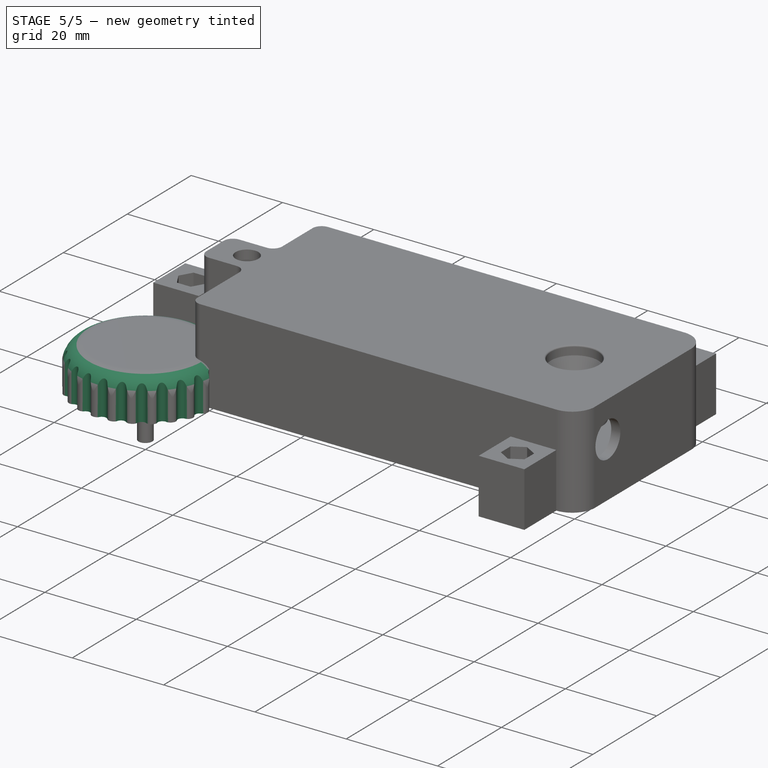
[diagram: stage 5 of 5 — iso view after this stage's code; geometry added in this stage tinted green]
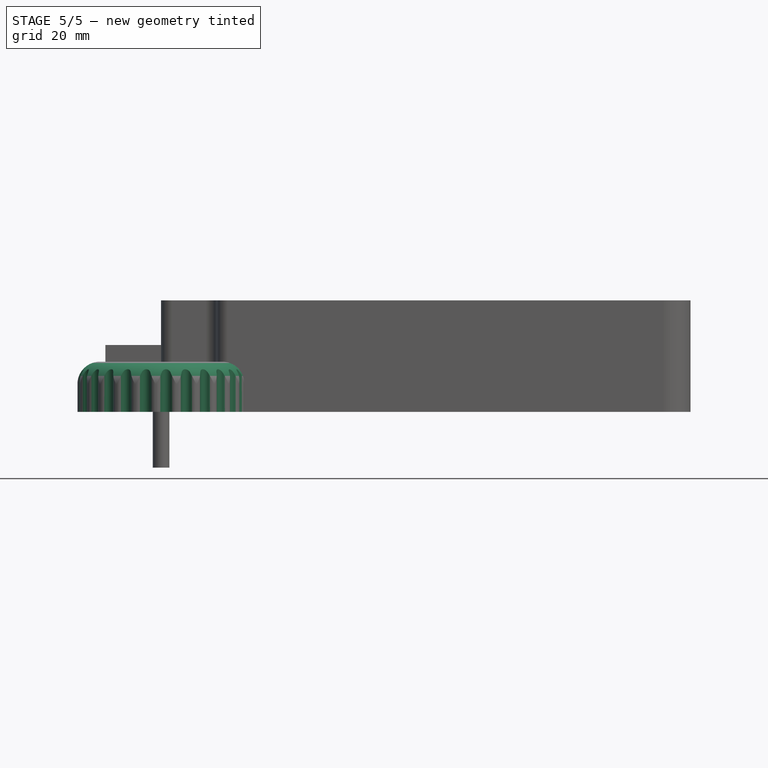
[diagram: stage 5 of 5 — front view after this stage's code; geometry added in this stage tinted green]
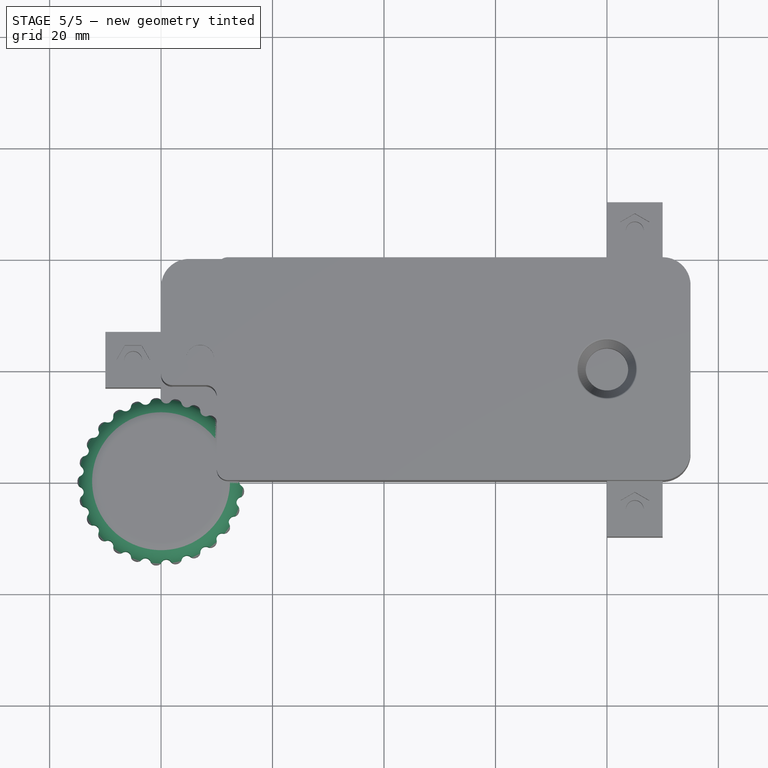
[diagram: stage 5 of 5 — top view after this stage's code; geometry added in this stage tinted green]
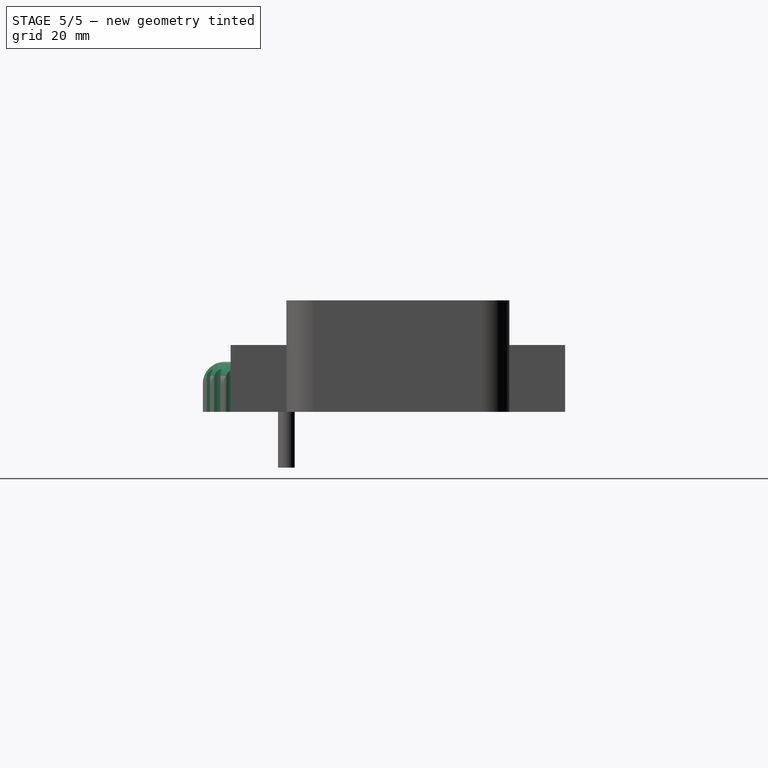
[diagram: stage 5 of 5 — right view after this stage's code; geometry added in this stage tinted green]
FEATURE [Sketcher::SketchObject] Sketch007
  MapMode = 5
  Placement = pos=(0,0,0) rot=(1,0,0;3.14159rad)
  Support = -> [Pad003]
  sketch-geometry (3):
    g0: ArcOfCircle CenterX=0 CenterY=0 CenterZ=0 NormalX=0 NormalY=0 NormalZ=1 AngleXU=0 Radius=3.7 StartAngle=4.35337 EndAngle=8.213
    g1: LineSegment StartX=-1.3 StartY=-3.4641 StartZ=0 EndX=-1.3 EndY=3.4641 EndZ=0
    g2: GeomPoint X=3.7 Y=0 Z=0
  constraints (9):
    c: PointOnObject(g0,g-1)
    c: PointOnObject(g0,g-2)
    c: Radius(g0) = 3.7
    c: Vertical(g1)
    c: Coincident(g0,g1)
    c: Coincident(g0,g1)
    c: PointOnObject(g2,g0)
    c: PointOnObject(g2,g-1)
    c: DistanceX(g0,g2) = 5
FEATURE [PartDesign::Pocket] Pocket002
  BaseFeature = -> Pad003
  Length = 7
  Profile = -> Sketch007
  Type = 0
FEATURE [PartDesign::Fillet] Fillet
  Base = -> Pocket002 [Edge3]
  BaseFeature = -> Pocket002
  Radius = 4
FEATURE [Sketcher::SketchObject] Sketch009
  ExternalGeometry = -> [Fillet]
  MapMode = 5
  Placement = pos=(0,0,0) rot=(1,0,0;3.14159rad)
  Support = -> [Fillet]
  sketch-geometry (6):
    g0: ArcOfCircle CenterX=15 CenterY=0 CenterZ=0 NormalX=0 NormalY=0 NormalZ=1 AngleXU=0 Radius=1 StartAngle=5.6317 EndAngle=6.93467
    g1: ArcOfCircle CenterX=13.9 CenterY=1.67033 CenterZ=0 NormalX=0 NormalY=0 NormalZ=1 AngleXU=0 Radius=1 StartAngle=5.29475 EndAngle=6.40278
    g2: ArcOfCircle CenterX=13.9 CenterY=-1.67033 CenterZ=0 NormalX=0 NormalY=0 NormalZ=1 AngleXU=0 Radius=1 StartAngle=6.16359 EndAngle=7.27162
    g3: LineSegment StartX=14.8929 StartY=1.78964 StartZ=0 EndX=15.7952 EndY=0.606372 EndZ=0
    g4: LineSegment StartX=14.8929 StartY=-1.78964 StartZ=0 EndX=15.7952 EndY=-0.606372 EndZ=0
    g5: ArcOfCircle CenterX=15 CenterY=0 CenterZ=0 NormalX=0 NormalY=0 NormalZ=1 AngleXU=0 Radius=1 StartAngle=2.15316 EndAngle=4.13002
  constraints (22):
    c: PointOnObject(g0,g-1)
    c: PointOnObject(g0,g-3)
    c: PointOnObject(g1,g0)
    c: PointOnObject(g1,g-3)
    c: Tangent(g1,g0)
    c: Radius(g0) = 1
    c: Tangent(g1,g-3)
    c: Radius(g1) = 1
    c: PointOnObject(g2,g0)
    c: PointOnObject(g2,g-3)
    c: Tangent(g2,g0)
    c: Tangent(g2,g-3)
    c: Equal(g2,g1)
    c: Coincident(g3,g1)
    c: Coincident(g4,g2)
    c: Tangent(g4,g0)
    c: Coincident(g0,g4)
    c: Coincident(g0,g3)
    c: Coincident(g5,g1)
    c: Coincident(g5,g2)
    c: Tangent(g5,g2)
    c: Equal(g3,g4)
FEATURE [PartDesign::Pocket] Pocket003
  BaseFeature = -> Fillet
  Length = 5
  Profile = -> Sketch009
  Type = 1
FEATURE [PartDesign::PolarPattern] PolarPattern
  Angle = 360
  Axis = -> Z_Axis002
  BaseFeature = -> Pocket003
  Occurrences = 25
  Originals = -> [Pocket003]
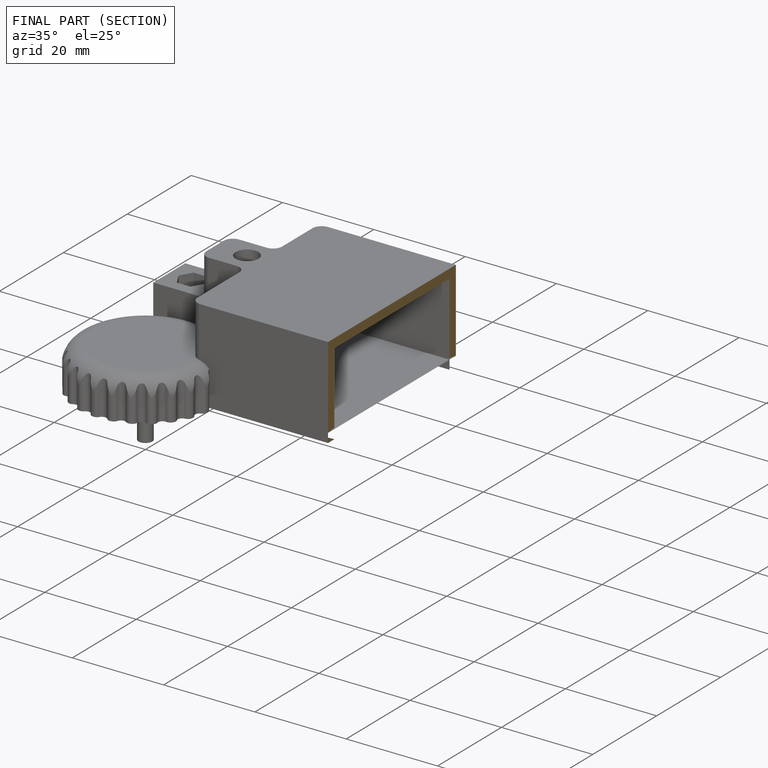
[diagram: finished part — half-section view (interior)]
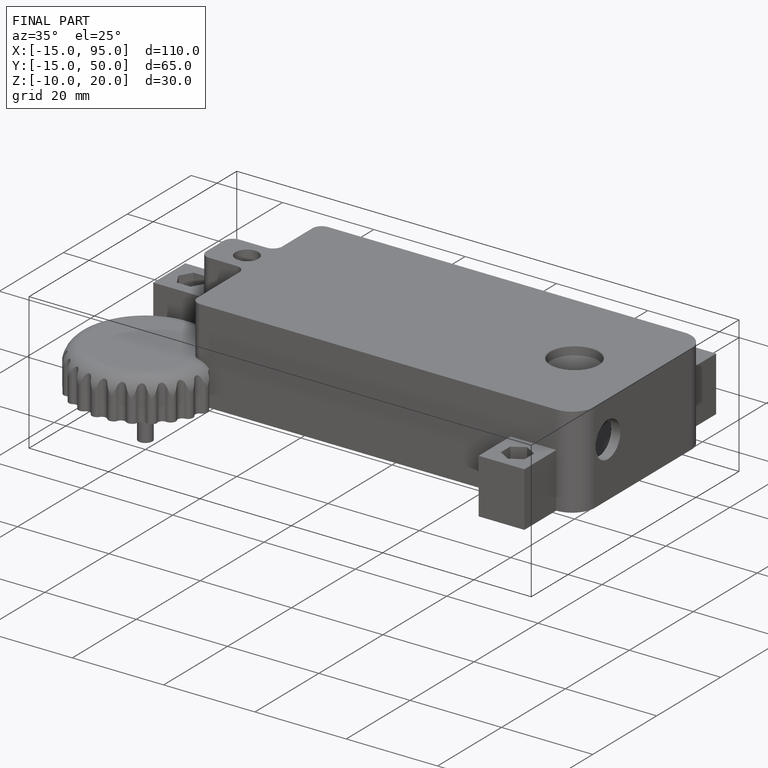
[diagram: finished part — iso view with bounding-box wireframe]
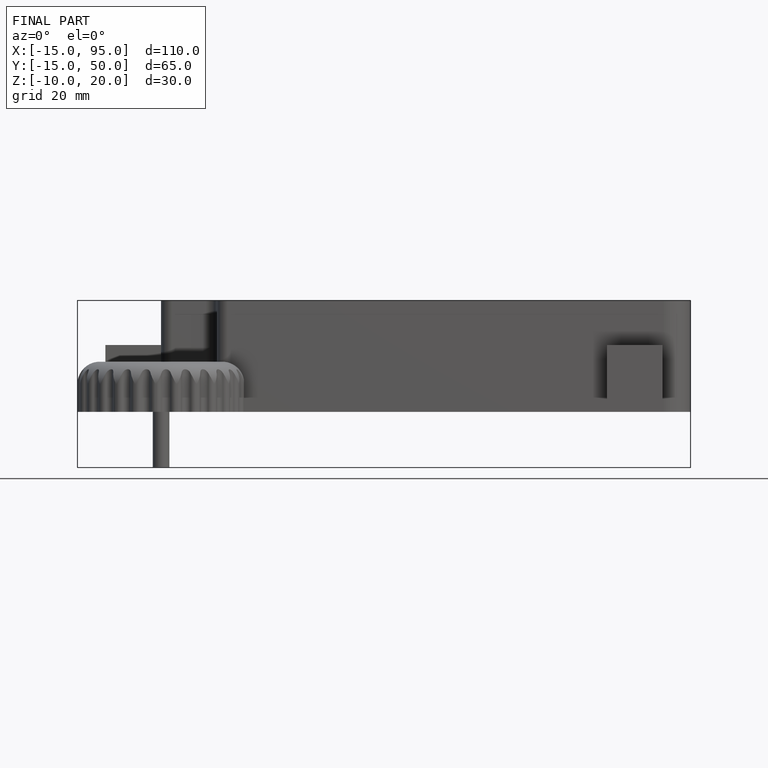
[diagram: finished part — front view with bounding-box wireframe]
